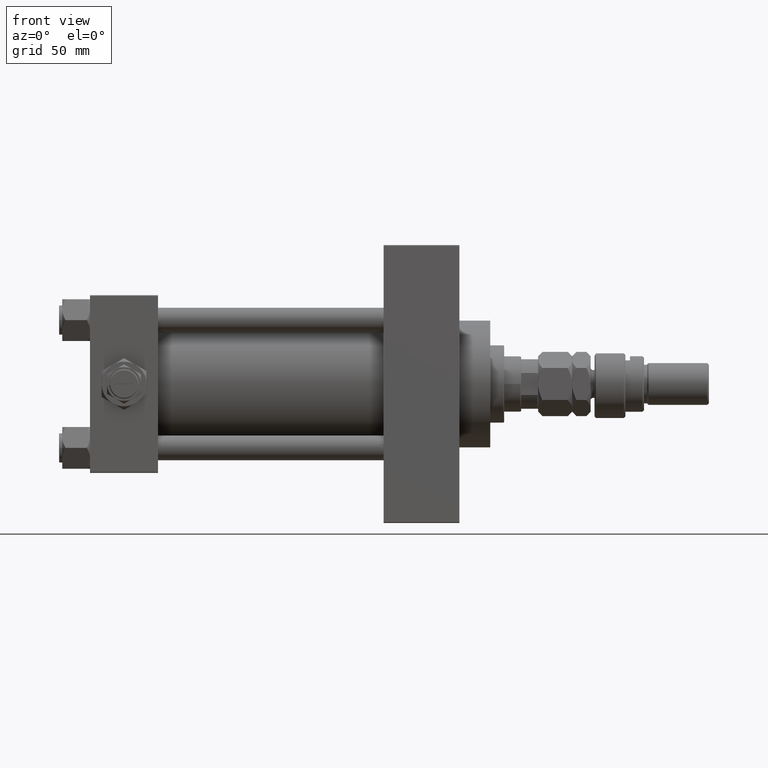
[diagram: clean part render]
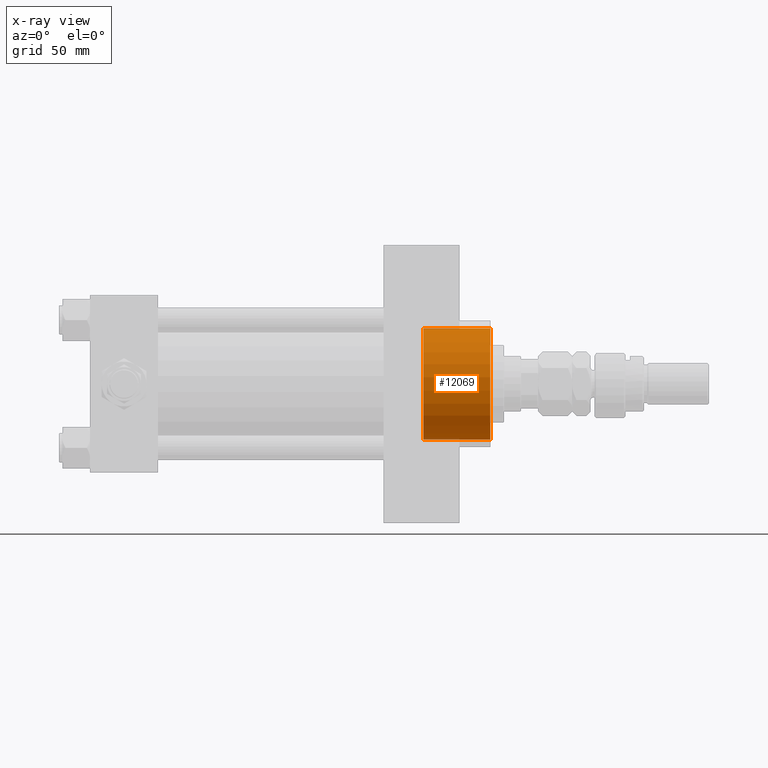
[diagram: x-ray — body ghosted, one internal face saturated and labeled with its STEP entity id]
A machine part, front view, then the same camera in x-ray: the body is ghosted and one INTERNAL B-rep face — a face not visible from any outside direction — is saturated and labeled: STEP entity #12069.
In plain terms, the highlighted cylindrical surface (partial cylindrical patch) has radius 36 mm, axis along (1, 0, 0).
Its self-contained STEP definition (entity closure, byte-faithful):
#10 = EDGE_CURVE ( 'NONE', #42675, #41559, #9042, .T. ) ;
#2923 = CARTESIAN_POINT ( 'NONE',  ( 259.0000000000000000, 4.408728476930470856E-15, 36.00000000000000000 ) ) ;
#4804 = DIRECTION ( 'NONE',  ( 1.000000000000000000, -0.000000000000000000, -0.000000000000000000 ) ) ;
#4974 = VERTEX_POINT ( 'NONE', #26254 ) ;
#5158 = DIRECTION ( 'NONE',  ( 0.000000000000000000, 0.000000000000000000, -1.000000000000000000 ) ) ;
#5511 = VECTOR ( 'NONE', #49198, 1000.000000000000000 ) ;
#9042 = LINE ( 'NONE', #29423, #23508 ) ;
#11238 = ORIENTED_EDGE ( 'NONE', *, *, #33529, .F. ) ;
#12069 = ADVANCED_FACE ( 'NONE', ( #19791 ), #35953, .F. ) ;
#12105 = CARTESIAN_POINT ( 'NONE',  ( 259.0000000000000000, 0.000000000000000000, -36.00000000000000000 ) ) ;
#12196 = EDGE_CURVE ( 'NONE', #47189, #41559, #51329, .T. ) ;
#13666 = DIRECTION ( 'NONE',  ( 1.000000000000000000, 0.000000000000000000, 0.000000000000000000 ) ) ;
#16819 = CARTESIAN_POINT ( 'NONE',  ( 215.7400000000000091, 0.000000000000000000, 0.000000000000000000 ) ) ;
#17447 = CARTESIAN_POINT ( 'NONE',  ( 215.7400000000000091, 4.408728476930470856E-15, 36.00000000000000000 ) ) ;
#19791 = FACE_OUTER_BOUND ( 'NONE', #47136, .T. ) ;
#21753 = AXIS2_PLACEMENT_3D ( 'NONE', #44131, #32754, #52060 ) ;
#22270 = DIRECTION ( 'NONE',  ( 1.000000000000000000, 0.000000000000000000, 0.000000000000000000 ) ) ;
#23508 = VECTOR ( 'NONE', #4804, 1000.000000000000000 ) ;
#25591 = CARTESIAN_POINT ( 'NONE',  ( 259.0000000000000000, 0.000000000000000000, 0.000000000000000000 ) ) ;
#26254 = CARTESIAN_POINT ( 'NONE',  ( 215.7400000000000091, 4.408728476930470856E-15, 36.00000000000000000 ) ) ;
#26733 = ORIENTED_EDGE ( 'NONE', *, *, #10, .F. ) ;
#29423 = CARTESIAN_POINT ( 'NONE',  ( 215.7400000000000091, 0.000000000000000000, -36.00000000000000000 ) ) ;
#30004 = ORIENTED_EDGE ( 'NONE', *, *, #12196, .T. ) ;
#32037 = EDGE_CURVE ( 'NONE', #4974, #47189, #37571, .T. ) ;
#32738 = AXIS2_PLACEMENT_3D ( 'NONE', #25591, #13666, #35355 ) ;
#32754 = DIRECTION ( 'NONE',  ( 1.000000000000000000, -0.000000000000000000, -0.000000000000000000 ) ) ;
#33529 = EDGE_CURVE ( 'NONE', #4974, #42675, #46842, .T. ) ;
#35355 = DIRECTION ( 'NONE',  ( 0.000000000000000000, 0.000000000000000000, -1.000000000000000000 ) ) ;
#35953 = CYLINDRICAL_SURFACE ( 'NONE', #21753, 36.00000000000000000 ) ;
#37571 = LINE ( 'NONE', #17447, #5511 ) ;
#41559 = VERTEX_POINT ( 'NONE', #12105 ) ;
#42322 = ORIENTED_EDGE ( 'NONE', *, *, #32037, .T. ) ;
#42675 = VERTEX_POINT ( 'NONE', #50107 ) ;
#44131 = CARTESIAN_POINT ( 'NONE',  ( 215.7400000000000091, 0.000000000000000000, 0.000000000000000000 ) ) ;
#46842 = CIRCLE ( 'NONE', #51920, 36.00000000000000000 ) ;
#47136 = EDGE_LOOP ( 'NONE', ( #11238, #42322, #30004, #26733 ) ) ;
#47189 = VERTEX_POINT ( 'NONE', #2923 ) ;
#49198 = DIRECTION ( 'NONE',  ( 1.000000000000000000, -0.000000000000000000, -0.000000000000000000 ) ) ;
#50107 = CARTESIAN_POINT ( 'NONE',  ( 215.7400000000000091, 0.000000000000000000, -36.00000000000000000 ) ) ;
#51329 = CIRCLE ( 'NONE', #32738, 36.00000000000000000 ) ;
#51920 = AXIS2_PLACEMENT_3D ( 'NONE', #16819, #22270, #5158 ) ;
#52060 = DIRECTION ( 'NONE',  ( 0.000000000000000000, 0.000000000000000000, -1.000000000000000000 ) ) ;